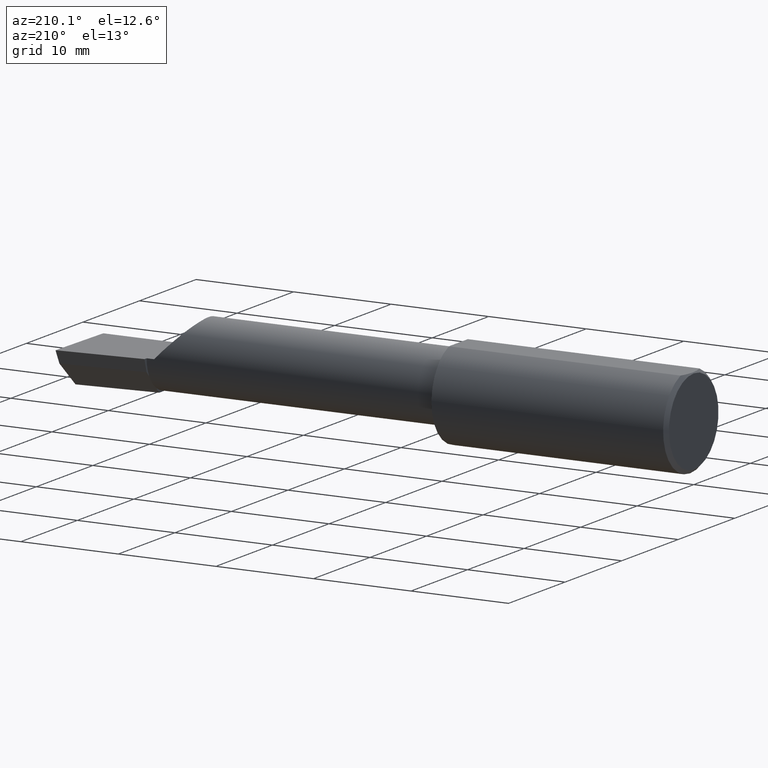
[diagram: clean part render]
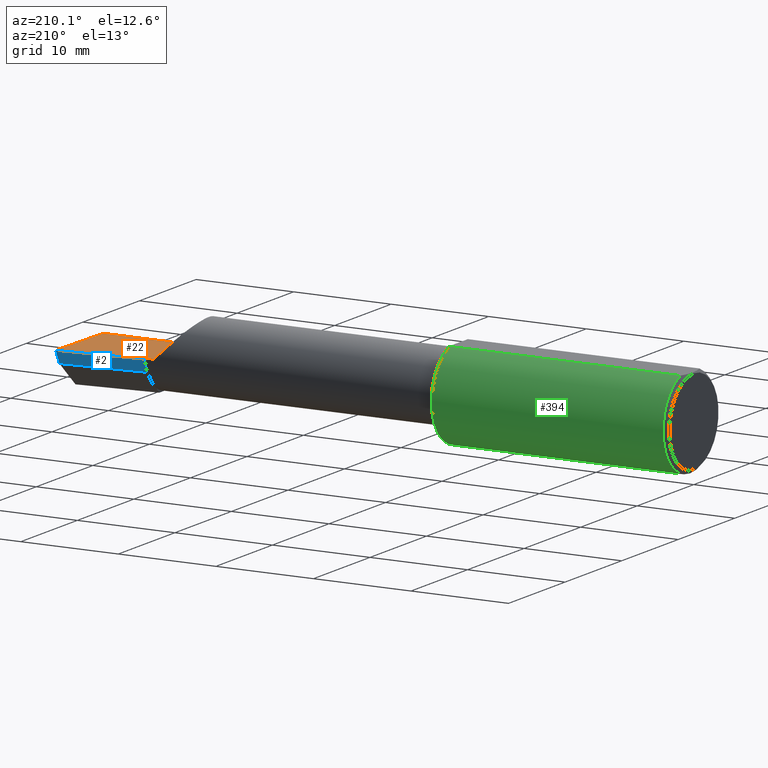
[diagram: same view with three faces highlighted in distinct colors, each labeled with its STEP entity id]
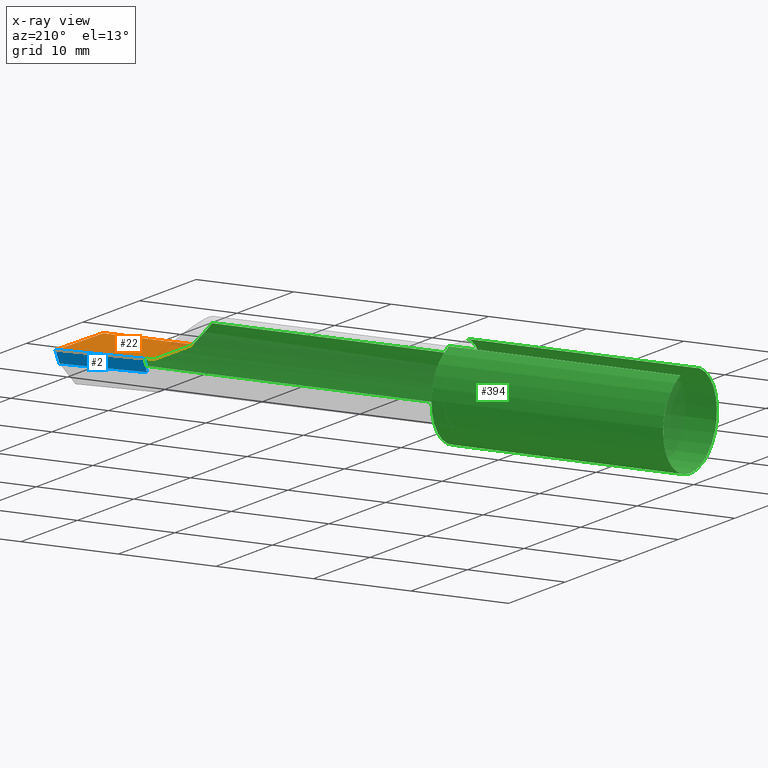
[diagram: x-ray of the same camera — body ghosted, the three highlighted faces saturated]
A machine part, auxiliary view with three faces highlighted in distinct colors.
The next image is the same camera in x-ray (body ghosted, the three faces saturated) — at least one of them is partly hidden behind the body in this view.
Their STEP definitions:

[orange] entity #22 — the highlighted planar face has unit normal (-0, 0, -1).
#12 = VERTEX_POINT ( 'NONE', #504 ) ;
#22 = ADVANCED_FACE ( 'NONE', ( #368 ), #320, .F. ) ;
#26 = DIRECTION ( 'NONE',  ( -1.033731667140896077E-16, 0.000000000000000000, -1.000000000000000000 ) ) ;
#37 = LINE ( 'NONE', #189, #451 ) ;
#44 = CARTESIAN_POINT ( 'NONE',  ( -9.564882787816662316E-19, 0.08264999999999995961, 3.267291166268304703E-16 ) ) ;
#50 = EDGE_LOOP ( 'NONE', ( #117, #299, #596, #99, #531, #215 ) ) ;
#61 = VERTEX_POINT ( 'NONE', #143 ) ;
#99 = ORIENTED_EDGE ( 'NONE', *, *, #360, .F. ) ;
#117 = ORIENTED_EDGE ( 'NONE', *, *, #121, .F. ) ;
#121 = EDGE_CURVE ( 'NONE', #444, #61, #200, .T. ) ;
#123 = CARTESIAN_POINT ( 'NONE',  ( 2.160000000000000142, 0.09791172361284175563, 3.308097179827818849E-16 ) ) ;
#138 = VECTOR ( 'NONE', #182, 39.37007874015748143 ) ;
#143 = CARTESIAN_POINT ( 'NONE',  ( 2.129999999999999893, -0.1873499999999999888, 1.065442715258197396E-16 ) ) ;
#150 = CARTESIAN_POINT ( 'NONE',  ( 3.377502344341257155E-32, -0.1873499999999999610, 3.267291166268304703E-16 ) ) ;
#174 = VERTEX_POINT ( 'NONE', #240 ) ;
#182 = DIRECTION ( 'NONE',  ( -6.829619984160658816E-18, 1.000000000000000000, 7.059994452165177242E-34 ) ) ;
#189 = CARTESIAN_POINT ( 'NONE',  ( 2.490039159128059953, -0.2497391662021650194, 6.932588350567417155E-17 ) ) ;
#197 = LINE ( 'NONE', #44, #221 ) ;
#200 = LINE ( 'NONE', #150, #406 ) ;
#215 = ORIENTED_EDGE ( 'NONE', *, *, #527, .F. ) ;
#221 = VECTOR ( 'NONE', #626, 39.37007874015748143 ) ;
#227 = DIRECTION ( 'NONE',  ( 0.9953961983671787417, 0.09584575252022459191, -1.028972571603813720E-16 ) ) ;
#234 = LINE ( 'NONE', #242, #482 ) ;
#239 = DIRECTION ( 'NONE',  ( 0.02617694830779364323, 0.9996573249755593693, -2.665804247635780349E-18 ) ) ;
#240 = CARTESIAN_POINT ( 'NONE',  ( 2.499999999999978684, 0.1306500000000238582, 8.403660643088248419E-14 ) ) ;
#242 = CARTESIAN_POINT ( 'NONE',  ( 2.129999999999999893, -0.2500000000000000555, 1.065442715258197396E-16 ) ) ;
#258 = CARTESIAN_POINT ( 'NONE',  ( 2.129999999999999893, 0.08264999999999983471, 1.065442715258197396E-16 ) ) ;
#259 = AXIS2_PLACEMENT_3D ( 'NONE', #563, #26, #410 ) ;
#263 = VERTEX_POINT ( 'NONE', #258 ) ;
#299 = ORIENTED_EDGE ( 'NONE', *, *, #584, .T. ) ;
#317 = EDGE_CURVE ( 'NONE', #351, #174, #599, .T. ) ;
#320 = PLANE ( 'NONE',  #259 ) ;
#324 = VECTOR ( 'NONE', #227, 39.37007874015748143 ) ;
#351 = VERTEX_POINT ( 'NONE', #123 ) ;
#360 = EDGE_CURVE ( 'NONE', #12, #351, #452, .T. ) ;
#368 = FACE_OUTER_BOUND ( 'NONE', #50, .T. ) ;
#406 = VECTOR ( 'NONE', #621, 39.37007874015748143 ) ;
#410 = DIRECTION ( 'NONE',  ( -1.000000000000000000, 0.000000000000000000, 1.033731667140896077E-16 ) ) ;
#420 = DIRECTION ( 'NONE',  ( -0.000000000000000000, 1.000000000000000000, -0.000000000000000000 ) ) ;
#437 = EDGE_CURVE ( 'NONE', #263, #12, #197, .T. ) ;
#444 = VERTEX_POINT ( 'NONE', #566 ) ;
#451 = VECTOR ( 'NONE', #239, 39.37007874015748854 ) ;
#452 = LINE ( 'NONE', #610, #138 ) ;
#482 = VECTOR ( 'NONE', #420, 39.37007874015748143 ) ;
#504 = CARTESIAN_POINT ( 'NONE',  ( 2.160000000000000142, 0.08265000000000004288, 3.267291166268306182E-16 ) ) ;
#527 = EDGE_CURVE ( 'NONE', #61, #263, #234, .T. ) ;
#531 = ORIENTED_EDGE ( 'NONE', *, *, #437, .F. ) ;
#562 = CARTESIAN_POINT ( 'NONE',  ( 0.5470260790800316464, -0.05740000000000000657, 2.701812985571356346E-16 ) ) ;
#563 = CARTESIAN_POINT ( 'NONE',  ( 2.500000000000000000, -0.2500000000000000555, 6.829619984160658046E-17 ) ) ;
#566 = CARTESIAN_POINT ( 'NONE',  ( 2.491672876940991710, -0.1873499999999999888, 6.915950918908297591E-17 ) ) ;
#584 = EDGE_CURVE ( 'NONE', #444, #174, #37, .T. ) ;
#596 = ORIENTED_EDGE ( 'NONE', *, *, #317, .F. ) ;
#599 = LINE ( 'NONE', #562, #324 ) ;
#610 = CARTESIAN_POINT ( 'NONE',  ( 2.160000000000000142, -0.2500000000000000555, 1.034430765243970311E-16 ) ) ;
#621 = DIRECTION ( 'NONE',  ( -1.000000000000000000, -0.000000000000000000, -0.000000000000000000 ) ) ;
#626 = DIRECTION ( 'NONE',  ( 1.000000000000000000, 6.829619984160658046E-18, 0.000000000000000000 ) ) ;

[blue] entity #2 — the highlighted planar face has unit normal (-0.0917, 0.9519, -0.2924).
#2 = ADVANCED_FACE ( 'NONE', ( #567 ), #363, .T. ) ;
#33 = ORIENTED_EDGE ( 'NONE', *, *, #157, .T. ) ;
#123 = CARTESIAN_POINT ( 'NONE',  ( 2.160000000000000142, 0.09791172361284175563, 3.308097179827818849E-16 ) ) ;
#132 = CARTESIAN_POINT ( 'NONE',  ( 2.509953961983671711, 0.1316084575252021438, -6.829619984160658046E-17 ) ) ;
#134 = ORIENTED_EDGE ( 'NONE', *, *, #603, .F. ) ;
#157 = EDGE_CURVE ( 'NONE', #161, #353, #372, .T. ) ;
#161 = VERTEX_POINT ( 'NONE', #245 ) ;
#174 = VERTEX_POINT ( 'NONE', #240 ) ;
#180 = CARTESIAN_POINT ( 'NONE',  ( 2.160000000000000142, 0.09456875743780475407, -0.01088401009027229610 ) ) ;
#227 = DIRECTION ( 'NONE',  ( 0.9953961983671787417, 0.09584575252022459191, -1.028972571603813720E-16 ) ) ;
#240 = CARTESIAN_POINT ( 'NONE',  ( 2.499999999999978684, 0.1306500000000238582, 8.403660643088248419E-14 ) ) ;
#245 = CARTESIAN_POINT ( 'NONE',  ( 2.493439983562941720, 0.1146611065212079089, -0.04999999999999999584 ) ) ;
#285 = CARTESIAN_POINT ( 'NONE',  ( 2.511419111345317923, 0.1163922996227946260, -0.04999999999999999584 ) ) ;
#302 = EDGE_LOOP ( 'NONE', ( #134, #33, #543, #550 ) ) ;
#311 = EDGE_CURVE ( 'NONE', #351, #353, #319, .T. ) ;
#313 = DIRECTION ( 'NONE',  ( 2.005228508682076666E-18, -0.2936076258024060692, -0.9559260233253795702 ) ) ;
#314 = DIRECTION ( 'NONE',  ( 0.000000000000000000, 0.2936076258024060692, 0.9559260233253795702 ) ) ;
#317 = EDGE_CURVE ( 'NONE', #351, #174, #599, .T. ) ;
#319 = LINE ( 'NONE', #180, #515 ) ;
#324 = VECTOR ( 'NONE', #227, 39.37007874015748143 ) ;
#328 = CARTESIAN_POINT ( 'NONE',  ( 2.500188977433779769, 0.1311105994646662165, 0.001440373173041280741 ) ) ;
#351 = VERTEX_POINT ( 'NONE', #123 ) ;
#353 = VERTEX_POINT ( 'NONE', #415 ) ;
#363 = PLANE ( 'NONE',  #432 ) ;
#372 = LINE ( 'NONE', #285, #484 ) ;
#415 = CARTESIAN_POINT ( 'NONE',  ( 2.160000000000000142, 0.08255448787293399870, -0.05000000000000000278 ) ) ;
#418 = DIRECTION ( 'NONE',  ( -0.9953961983671800740, -0.09584575252021031166, 0.000000000000000000 ) ) ;
#432 = AXIS2_PLACEMENT_3D ( 'NONE', #132, #601, #314 ) ;
#484 = VECTOR ( 'NONE', #418, 39.37007874015748854 ) ;
#515 = VECTOR ( 'NONE', #313, 39.37007874015748854 ) ;
#519 = DIRECTION ( 'NONE',  ( 0.1240019227988267692, 0.3022330132596590113, 0.9451342385281470415 ) ) ;
#539 = VECTOR ( 'NONE', #519, 39.37007874015748854 ) ;
#543 = ORIENTED_EDGE ( 'NONE', *, *, #311, .F. ) ;
#550 = ORIENTED_EDGE ( 'NONE', *, *, #317, .T. ) ;
#562 = CARTESIAN_POINT ( 'NONE',  ( 0.5470260790800316464, -0.05740000000000000657, 2.701812985571356346E-16 ) ) ;
#567 = FACE_OUTER_BOUND ( 'NONE', #302, .T. ) ;
#572 = LINE ( 'NONE', #328, #539 ) ;
#599 = LINE ( 'NONE', #562, #324 ) ;
#601 = DIRECTION ( 'NONE',  ( -0.09165774897393341725, 0.9519021185660614393, -0.2923717047227303856 ) ) ;
#603 = EDGE_CURVE ( 'NONE', #161, #174, #572, .T. ) ;

[green] entity #394 — the highlighted cylindrical surface (partial cylindrical patch) has radius 4.7587 mm, axis along (-1, -0, -0).
#7 = CARTESIAN_POINT ( 'NONE',  ( 0.9728009145006649705, -0.1635956445997552022, 0.09130436773775203740 ) ) ;
#10 = CARTESIAN_POINT ( 'NONE',  ( 0.01499999999999999424, 0.000000000000000000, -0.1873499999999999888 ) ) ;
#11 = CARTESIAN_POINT ( 'NONE',  ( 0.9749999999999999778, -0.1635956445993032859, -0.09130436773856137611 ) ) ;
#14 = CARTESIAN_POINT ( 'NONE',  ( 0.9709038625689692115, -0.1628809688430623848, 0.09258733509388457350 ) ) ;
#20 = DIRECTION ( 'NONE',  ( 0.000000000000000000, 0.000000000000000000, 1.000000000000000000 ) ) ;
#24 = ORIENTED_EDGE ( 'NONE', *, *, #467, .T. ) ;
#28 = CARTESIAN_POINT ( 'NONE',  ( 0.01499999999999997863, -0.06597272163553657975, 0.1753499999999999781 ) ) ;
#31 = CIRCLE ( 'NONE', #526, 0.1873499999999999888 ) ;
#41 = CARTESIAN_POINT ( 'NONE',  ( 2.481080296960508580, -0.1635956445993030639, -0.09130436773856169530 ) ) ;
#47 = CARTESIAN_POINT ( 'NONE',  ( 0.9499999999999999556, 0.000000000000000000, 0.000000000000000000 ) ) ;
#52 = CARTESIAN_POINT ( 'NONE',  ( 0.9749999999999999778, -0.1635956445993032859, -0.09130436773856137611 ) ) ;
#61 = VERTEX_POINT ( 'NONE', #143 ) ;
#63 = CARTESIAN_POINT ( 'NONE',  ( 0.9499999999999999556, -0.1045082199249681848, -0.1557306416133593385 ) ) ;
#65 = CARTESIAN_POINT ( 'NONE',  ( 0.9580729541431403096, -0.1479074971576200548, 0.1152872342625229363 ) ) ;
#66 = ORIENTED_EDGE ( 'NONE', *, *, #139, .F. ) ;
#79 = CARTESIAN_POINT ( 'NONE',  ( 0.000000000000000000, 0.000000000000000000, 0.000000000000000000 ) ) ;
#86 = DIRECTION ( 'NONE',  ( 1.000000000000000000, 0.000000000000000000, 0.000000000000000000 ) ) ;
#87 = CARTESIAN_POINT ( 'NONE',  ( 2.129999999999999893, -0.1873499999999999888, 1.065442715258197396E-16 ) ) ;
#98 = CARTESIAN_POINT ( 'NONE',  ( 0.9499999999999999556, 0.000000000000000000, 0.000000000000000000 ) ) ;
#103 = CARTESIAN_POINT ( 'NONE',  ( 0.9530259122056835563, -0.1310442973014115942, 0.1341609063345041708 ) ) ;
#112 = CARTESIAN_POINT ( 'NONE',  ( 0.9500000000000002887, -0.1045012500212954831, 0.1557348687830034384 ) ) ;
#115 = CARTESIAN_POINT ( 'NONE',  ( 0.9561458414306042153, -0.1426194794824340306, -0.1217813759115466965 ) ) ;
#119 = EDGE_CURVE ( 'NONE', #61, #625, #199, .T. ) ;
#121 = EDGE_CURVE ( 'NONE', #444, #61, #200, .T. ) ;
#130 = EDGE_CURVE ( 'NONE', #208, #226, #343, .T. ) ;
#139 = EDGE_CURVE ( 'NONE', #492, #556, #31, .T. ) ;
#143 = CARTESIAN_POINT ( 'NONE',  ( 2.129999999999999893, -0.1873499999999999888, 1.065442715258197396E-16 ) ) ;
#147 = B_SPLINE_CURVE_WITH_KNOTS ( 'NONE', 3,
 ( #52, #203, #387, #585, #345, #153, #160, #392, #115, #491, #536, #485, #63, #592 ),
 .UNSPECIFIED., .F., .F.,
 ( 4, 2, 2, 2, 2, 2, 4 ),
 ( 1.968340875534775316E-07, 0.0001667114270246243708, 0.0003332260199616952716, 0.0006662552058358422232, 0.001332313577584134500, 0.001998371949332426994, 0.002664430321080719921 ),
 .UNSPECIFIED. ) ;
#150 = CARTESIAN_POINT ( 'NONE',  ( 3.377502344341257155E-32, -0.1873499999999999610, 3.267291166268304703E-16 ) ) ;
#153 = CARTESIAN_POINT ( 'NONE',  ( 0.9637431740823498849, -0.1572750258711011206, -0.1018777902325210954 ) ) ;
#158 = EDGE_CURVE ( 'NONE', #339, #266, #278, .T. ) ;
#160 = CARTESIAN_POINT ( 'NONE',  ( 0.9621845987149126866, -0.1550322129197698462, -0.1052705638704080071 ) ) ;
#165 = ORIENTED_EDGE ( 'NONE', *, *, #613, .F. ) ;
#167 = CARTESIAN_POINT ( 'NONE',  ( 0.9518917549365450981, -0.1247344934163568814, 0.1400506178720500039 ) ) ;
#168 = VECTOR ( 'NONE', #568, 39.37007874015748143 ) ;
#170 = AXIS2_PLACEMENT_3D ( 'NONE', #397, #364, #20 ) ;
#172 = ORIENTED_EDGE ( 'NONE', *, *, #158, .F. ) ;
#173 = CARTESIAN_POINT ( 'NONE',  ( 0.01499999999999999424, 0.06597272163553663527, 0.1753499999999999781 ) ) ;
#179 = VECTOR ( 'NONE', #520, 39.37007874015748143 ) ;
#186 = VERTEX_POINT ( 'NONE', #588 ) ;
#192 = CARTESIAN_POINT ( 'NONE',  ( 1.567500000000000115, -0.1635956445993030639, 0.09130436773856169530 ) ) ;
#196 = VERTEX_POINT ( 'NONE', #490 ) ;
#199 =( BOUNDED_CURVE ( )  B_SPLINE_CURVE ( 3, ( #87, #619, #470, #338 ),
 .UNSPECIFIED., .F., .T. ) 
 B_SPLINE_CURVE_WITH_KNOTS ( ( 4, 4 ),
 ( 4.712388980384689674, 5.221437360734125122 ),
 .UNSPECIFIED. ) 
 CURVE ( )  GEOMETRIC_REPRESENTATION_ITEM ( )  RATIONAL_B_SPLINE_CURVE ( ( 1.000000000000000000, 0.9785221379938656705, 0.9785221379938656705, 1.000000000000000000 ) ) 
 REPRESENTATION_ITEM ( '' )  );
#200 = LINE ( 'NONE', #150, #406 ) ;
#203 = CARTESIAN_POINT ( 'NONE',  ( 0.9727799353194344079, -0.1635956445993032582, -0.09130436773856143162 ) ) ;
#208 = VERTEX_POINT ( 'NONE', #253 ) ;
#210 = CARTESIAN_POINT ( 'NONE',  ( 0.9668559945294940006, -0.1603175578889970421, 0.09696363432848423280 ) ) ;
#214 = EDGE_CURVE ( 'NONE', #556, #196, #545, .T. ) ;
#222 = FACE_OUTER_BOUND ( 'NONE', #547, .T. ) ;
#226 = VERTEX_POINT ( 'NONE', #11 ) ;
#230 = CYLINDRICAL_SURFACE ( 'NONE', #304, 0.1873499999999999888 ) ;
#235 = DIRECTION ( 'NONE',  ( 1.000000000000000000, 6.829619984160658046E-18, 0.000000000000000000 ) ) ;
#238 = ORIENTED_EDGE ( 'NONE', *, *, #249, .F. ) ;
#243 = CARTESIAN_POINT ( 'NONE',  ( 1.567500000000000115, -0.1635956445993030639, -0.09130436773856169530 ) ) ;
#249 = EDGE_CURVE ( 'NONE', #226, #186, #147, .T. ) ;
#253 = CARTESIAN_POINT ( 'NONE',  ( 2.481080296960508580, -0.1635956445993030639, -0.09130436773856169530 ) ) ;
#266 = VERTEX_POINT ( 'NONE', #10 ) ;
#271 = ORIENTED_EDGE ( 'NONE', *, *, #537, .F. ) ;
#272 = DIRECTION ( 'NONE',  ( 0.000000000000000000, 0.000000000000000000, 1.000000000000000000 ) ) ;
#275 = EDGE_CURVE ( 'NONE', #266, #431, #306, .T. ) ;
#278 = CIRCLE ( 'NONE', #393, 0.1873499999999999888 ) ;
#279 = CARTESIAN_POINT ( 'NONE',  ( 2.487725449370724817, -0.1873500000000000443, -0.03213820089768505694 ) ) ;
#281 = CARTESIAN_POINT ( 'NONE',  ( 0.000000000000000000, -0.06597272163553657975, 0.1753499999999999781 ) ) ;
#282 = DIRECTION ( 'NONE',  ( 0.000000000000000000, 0.000000000000000000, 1.000000000000000000 ) ) ;
#295 = AXIS2_PLACEMENT_3D ( 'NONE', #47, #417, #428 ) ;
#304 = AXIS2_PLACEMENT_3D ( 'NONE', #79, #407, #272 ) ;
#306 = CIRCLE ( 'NONE', #170, 0.1873499999999999888 ) ;
#318 = ORIENTED_EDGE ( 'NONE', *, *, #130, .F. ) ;
#321 = CARTESIAN_POINT ( 'NONE',  ( 0.9499999999999999556, -0.06597272163553659363, 0.1753499999999999781 ) ) ;
#326 = CARTESIAN_POINT ( 'NONE',  ( 0.000000000000000000, 0.06597272163553663527, 0.1753499999999999781 ) ) ;
#327 = DIRECTION ( 'NONE',  ( -1.000000000000000000, -0.000000000000000000, -0.000000000000000000 ) ) ;
#332 = DIRECTION ( 'NONE',  ( 1.000000000000000000, 6.829619984160658046E-18, 0.000000000000000000 ) ) ;
#333 = DIRECTION ( 'NONE',  ( 0.000000000000000000, 1.000000000000000000, 0.000000000000000000 ) ) ;
#336 = LINE ( 'NONE', #281, #168 ) ;
#338 = CARTESIAN_POINT ( 'NONE',  ( 2.038695632261437130, -0.1635956445993029529, 0.09130436773856188959 ) ) ;
#339 = VERTEX_POINT ( 'NONE', #173 ) ;
#343 = LINE ( 'NONE', #243, #179 ) ;
#345 = CARTESIAN_POINT ( 'NONE',  ( 0.9668149093790885384, -0.1602818635245159273, -0.09702252612905266915 ) ) ;
#346 = VERTEX_POINT ( 'NONE', #367 ) ;
#347 = CARTESIAN_POINT ( 'NONE',  ( 0.9561423219567505294, -0.1426151417460932158, 0.1217894822571231050 ) ) ;
#352 = CARTESIAN_POINT ( 'NONE',  ( 0.9637641080978832653, -0.1573043405450773313, 0.1018329020719633132 ) ) ;
#356 = CARTESIAN_POINT ( 'NONE',  ( 0.9622046384587370493, -0.1550630761760525278, 0.1052254855377560278 ) ) ;
#361 = ORIENTED_EDGE ( 'NONE', *, *, #275, .F. ) ;
#364 = DIRECTION ( 'NONE',  ( -1.000000000000000000, -0.000000000000000000, -0.000000000000000000 ) ) ;
#367 = CARTESIAN_POINT ( 'NONE',  ( 0.9499999999999999556, 0.06597272163553663527, 0.1753499999999999781 ) ) ;
#374 = LINE ( 'NONE', #326, #589 ) ;
#387 = CARTESIAN_POINT ( 'NONE',  ( 0.9708814992308703040, -0.1628722075910992717, -0.09260290410947837059 ) ) ;
#388 = ORIENTED_EDGE ( 'NONE', *, *, #512, .T. ) ;
#392 = CARTESIAN_POINT ( 'NONE',  ( 0.9580682074421708050, -0.1478915270140211402, -0.1153063024254922797 ) ) ;
#393 = AXIS2_PLACEMENT_3D ( 'NONE', #517, #327, #282 ) ;
#394 = ADVANCED_FACE ( 'NONE', ( #222 ), #230, .T. ) ;
#397 = CARTESIAN_POINT ( 'NONE',  ( 0.01499999999999999424, 0.000000000000000000, 0.000000000000000000 ) ) ;
#399 = CARTESIAN_POINT ( 'NONE',  ( 0.9499999999999999556, -0.09715400696864127938, 0.1601908905959923690 ) ) ;
#406 = VECTOR ( 'NONE', #621, 39.37007874015748143 ) ;
#407 = DIRECTION ( 'NONE',  ( -1.000000000000000000, -0.000000000000000000, -0.000000000000000000 ) ) ;
#417 = DIRECTION ( 'NONE',  ( 1.000000000000000000, 6.829619984160658046E-18, 0.000000000000000000 ) ) ;
#422 = CARTESIAN_POINT ( 'NONE',  ( 2.491672876940991710, -0.1873499999999999888, 6.915950918908297591E-17 ) ) ;
#428 = DIRECTION ( 'NONE',  ( 0.000000000000000000, 1.000000000000000000, 0.000000000000000000 ) ) ;
#431 = VERTEX_POINT ( 'NONE', #28 ) ;
#441 = CARTESIAN_POINT ( 'NONE',  ( 2.038695632261437130, -0.1635956445993029529, 0.09130436773856188959 ) ) ;
#442 = CARTESIAN_POINT ( 'NONE',  ( 0.9680018598681170428, -0.1612625562479372832, 0.09537826053888150135 ) ) ;
#444 = VERTEX_POINT ( 'NONE', #566 ) ;
#464 =( BOUNDED_CURVE ( )  B_SPLINE_CURVE ( 3, ( #41, #516, #279, #422 ),
 .UNSPECIFIED., .F., .T. ) 
 B_SPLINE_CURVE_WITH_KNOTS ( ( 4, 4 ),
 ( 0.8516985021657653698, 1.360746882515200484 ),
 .UNSPECIFIED. ) 
 CURVE ( )  GEOMETRIC_REPRESENTATION_ITEM ( )  RATIONAL_B_SPLINE_CURVE ( ( 1.000000000000000000, 0.9785221379938656705, 0.9785221379938656705, 1.000000000000000000 ) ) 
 REPRESENTATION_ITEM ( '' )  );
#467 = EDGE_CURVE ( 'NONE', #492, #431, #336, .T. ) ;
#470 = CARTESIAN_POINT ( 'NONE',  ( 2.066758987970638284, -0.1792580844883770730, 0.06324101202936138755 ) ) ;
#476 = ORIENTED_EDGE ( 'NONE', *, *, #121, .T. ) ;
#485 = CARTESIAN_POINT ( 'NONE',  ( 0.9503844419023956824, -0.1115101367984840386, -0.1507946173152223679 ) ) ;
#490 = CARTESIAN_POINT ( 'NONE',  ( 0.9749999999999999778, -0.1635956445993030917, 0.09130436773856159816 ) ) ;
#491 = CARTESIAN_POINT ( 'NONE',  ( 0.9530417279495578819, -0.1311116946065052913, -0.1340922927843369028 ) ) ;
#492 = VERTEX_POINT ( 'NONE', #321 ) ;
#511 = VECTOR ( 'NONE', #332, 39.37007874015748143 ) ;
#512 = EDGE_CURVE ( 'NONE', #208, #444, #464, .T. ) ;
#516 = CARTESIAN_POINT ( 'NONE',  ( 2.484117089522337452, -0.1792580844883771285, -0.06324101202936134591 ) ) ;
#517 = CARTESIAN_POINT ( 'NONE',  ( 0.01499999999999999424, 0.000000000000000000, 0.000000000000000000 ) ) ;
#520 = DIRECTION ( 'NONE',  ( -1.000000000000000000, -6.829619984160658046E-18, -0.000000000000000000 ) ) ;
#526 = AXIS2_PLACEMENT_3D ( 'NONE', #98, #235, #333 ) ;
#536 = CARTESIAN_POINT ( 'NONE',  ( 0.9519033967903075544, -0.1248165254919063188, -0.1399798634953945131 ) ) ;
#537 = EDGE_CURVE ( 'NONE', #186, #346, #570, .T. ) ;
#544 = CARTESIAN_POINT ( 'NONE',  ( 0.9503837281337298437, -0.1114837668894152617, 0.1508119329971095712 ) ) ;
#545 = B_SPLINE_CURVE_WITH_KNOTS ( 'NONE', 3,
 ( #399, #112, #544, #167, #103, #347, #65, #356, #352, #210, #442, #14, #7, #549 ),
 .UNSPECIFIED., .F., .F.,
 ( 4, 2, 2, 2, 2, 2, 4 ),
 ( 0.0002471551878304231319, 0.0008987327522055668910, 0.001550310316580710704, 0.002201887880955854734, 0.002527676663143425557, 0.002690571054237208149, 0.002853465445330990308 ),
 .UNSPECIFIED. ) ;
#547 = EDGE_LOOP ( 'NONE', ( #318, #388, #476, #586, #165, #591, #66, #24, #361, #172, #606, #271, #238 ) ) ;
#549 = CARTESIAN_POINT ( 'NONE',  ( 0.9749999999999999778, -0.1635956445993030917, 0.09130436773856159816 ) ) ;
#556 = VERTEX_POINT ( 'NONE', #616 ) ;
#565 = EDGE_CURVE ( 'NONE', #339, #346, #374, .T. ) ;
#566 = CARTESIAN_POINT ( 'NONE',  ( 2.491672876940991710, -0.1873499999999999888, 6.915950918908297591E-17 ) ) ;
#568 = DIRECTION ( 'NONE',  ( -1.000000000000000000, -0.000000000000000000, -0.000000000000000000 ) ) ;
#570 = CIRCLE ( 'NONE', #295, 0.1873499999999999888 ) ;
#585 = CARTESIAN_POINT ( 'NONE',  ( 0.9679759419021533029, -0.1612443294219081946, -0.09540922431498184697 ) ) ;
#586 = ORIENTED_EDGE ( 'NONE', *, *, #119, .T. ) ;
#588 = CARTESIAN_POINT ( 'NONE',  ( 0.9499999999999999556, -0.09715400696864127938, -0.1601908905959923690 ) ) ;
#589 = VECTOR ( 'NONE', #86, 39.37007874015748143 ) ;
#591 = ORIENTED_EDGE ( 'NONE', *, *, #214, .F. ) ;
#592 = CARTESIAN_POINT ( 'NONE',  ( 0.9499999999999999556, -0.09715400696864127938, -0.1601908905959923690 ) ) ;
#606 = ORIENTED_EDGE ( 'NONE', *, *, #565, .T. ) ;
#613 = EDGE_CURVE ( 'NONE', #196, #625, #620, .T. ) ;
#616 = CARTESIAN_POINT ( 'NONE',  ( 0.9499999999999999556, -0.09715400696864127938, 0.1601908905959923690 ) ) ;
#619 = CARTESIAN_POINT ( 'NONE',  ( 2.097861799102314961, -0.1873500000000000165, 0.03213820089768509858 ) ) ;
#620 = LINE ( 'NONE', #192, #511 ) ;
#621 = DIRECTION ( 'NONE',  ( -1.000000000000000000, -0.000000000000000000, -0.000000000000000000 ) ) ;
#625 = VERTEX_POINT ( 'NONE', #441 ) ;